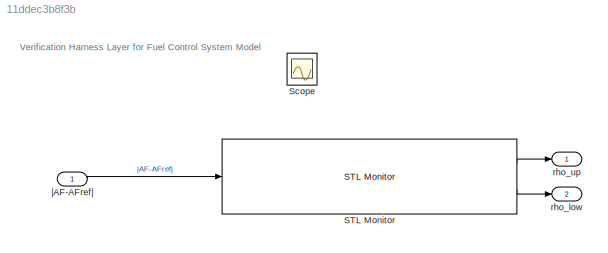
MODEL slx_11ddec3b8f3b
KIND model
CONFIG AbsTol = auto
CONFIG EnableMultiTasking = off
CONFIG FixedStep = auto
CONFIG MaxStep = .01
CONFIG MinStep = auto
CONFIG RelTol = 1e-3
CONFIG SampleTimeConstraint = Unconstrained
CONFIG SolverName = ode15s
CONFIG StartTime = 0.0
CONFIG StopTime = 40.0
BLOCK [Reference] STL Monitor  REF=slstlib/STL Monitor
  Ports = [1, 2]
  SourceBlock = slstlib/STL Monitor
  SourceProductName = Breach Library
BLOCK [Scope] Scope
  Floating = off
  IOType = viewer
  NumInputPorts = 1
  Ports = []
  ScopeSpecificationString = C++SS(StrPVP('Location','[376, 294, 700, 533]'),StrPVP('Open','off'),MxPVP('AxesTitles',54,'struct(''axes1'',''%<SignalLabel>'')'),MxPVP('ScopeGraphics',57,'struct(''FigureColor'',''[0.5 0.5 0.5]'',''AxesColor'',''[0 0 0]'',''AxesTickColor'',''[1 1 1]'',''LineColors'',''[1 1 0;1 0 1;0 1 1;1 0 0;0 1 0;0 0 1]'',''LineStyles'',''-|-|-|-|-|-'',''LineWidths'',''[0.5 0.5 0.5 0.5 0.5 0.5]'',''MarkerStyle...<+176ch>
BLOCK [Outport] rho_low
  Port = 2
BLOCK [Outport] rho_up
BLOCK [Inport] |AF-AFref|
ANNOTATION (root): Verification Harness Layer for Fuel Control System Model
LINE STL Monitor:1 -> rho_up:1
LINE STL Monitor:2 -> rho_low:1
LINE |AF-AFref|:1 -> STL Monitor:1
